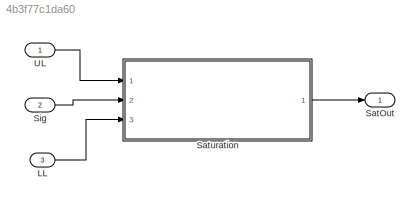
MODEL slx_4b3f77c1da60
KIND model
CONFIG AbsTol = auto
CONFIG EnableMultiTasking = off
CONFIG FixedStep = auto
CONFIG MaxStep = auto
CONFIG MinStep = auto
CONFIG RelTol = 1e-3
CONFIG SampleTimeConstraint = Unconstrained
CONFIG SolverName = VariableStepAuto
CONFIG StartTime = 0.0
CONFIG StopTime = 10.0
BLOCK [Inport] LL
  Port = 3
BLOCK [Outport] SatOut
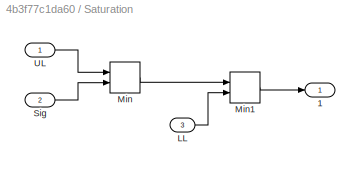
BLOCK [SubSystem] Saturation
  Ports = [3, 1]
  RequestExecContextInheritance = off
BLOCK [Outport] Saturation/1
BLOCK [Inport] Saturation/LL
  Port = 3
BLOCK [MinMax] Saturation/Min
  Inputs = 2
  Ports = [2, 1]
BLOCK [MinMax] Saturation/Min1
  Function = max
  Inputs = 2
  Ports = [2, 1]
BLOCK [Inport] Saturation/Sig
  Port = 2
BLOCK [Inport] Saturation/UL
BLOCK [Inport] Sig
  Port = 2
BLOCK [Inport] UL
LINE LL:1 -> Saturation:3
LINE Saturation/LL:1 -> Saturation/Min1:2
LINE Saturation/Min1:1 -> Saturation/1:1
LINE Saturation/Min:1 -> Saturation/Min1:1
LINE Saturation/Sig:1 -> Saturation/Min:2
LINE Saturation/UL:1 -> Saturation/Min:1
LINE Saturation:1 -> SatOut:1
LINE Sig:1 -> Saturation:2
LINE UL:1 -> Saturation:1
